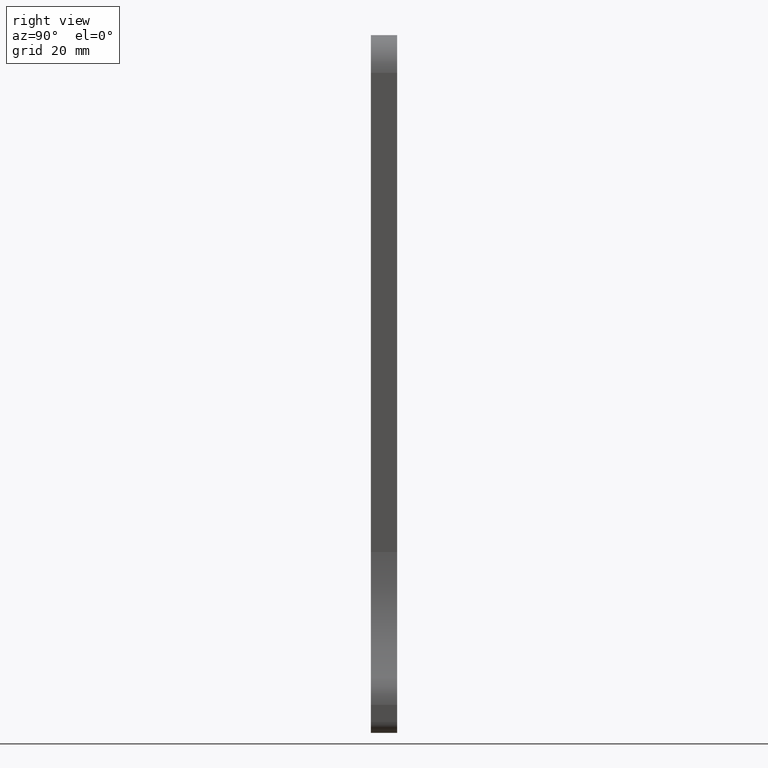
[diagram: clean part render]
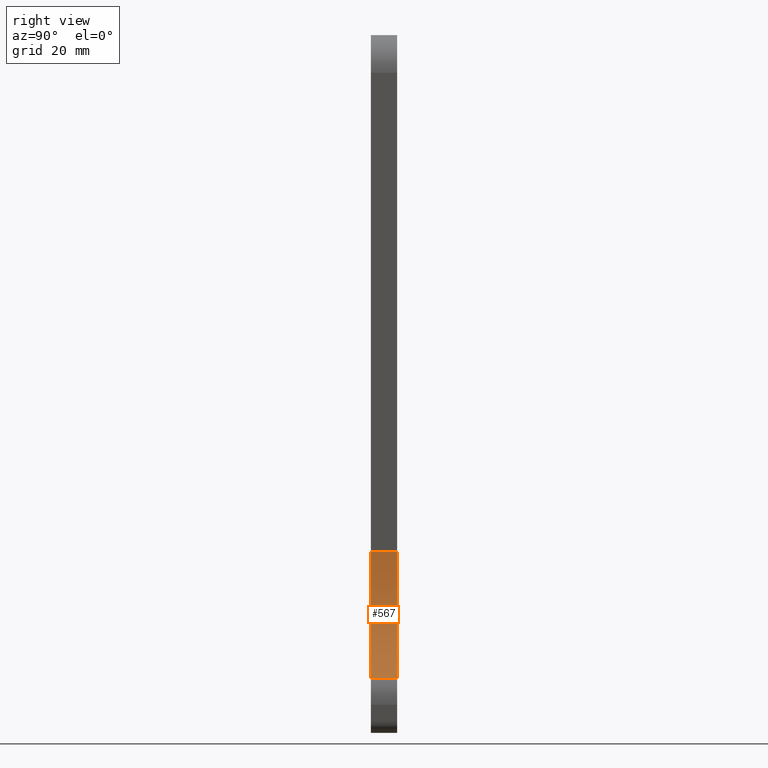
[diagram: same view with one face highlighted and labeled with its STEP entity id]
A machine part, right view. The second image highlights one B-rep face of the part: STEP entity #567.
In plain terms, the highlighted cylindrical surface (partial cylindrical patch) has radius 50 mm, axis along (-0, -1, -0).
Its self-contained STEP definition (entity closure, byte-faithful):
#39 = DIRECTION ( 'NONE',  ( 0.0000000000000000000, 1.000000000000000000, -0.0000000000000000000 ) ) ;
#46 = DIRECTION ( 'NONE',  ( -0.0000000000000000000, -1.000000000000000000, -0.0000000000000000000 ) ) ;
#130 = CARTESIAN_POINT ( 'NONE',  ( 22.91666666666669600, 3.000000000000000000, 9.590810946766229300 ) ) ;
#152 = ORIENTED_EDGE ( 'NONE', *, *, #514, .T. ) ;
#209 = VERTEX_POINT ( 'NONE', #826 ) ;
#264 = CARTESIAN_POINT ( 'NONE',  ( 12.52581510148203800, 3.000000000000000000, 38.53197360864291500 ) ) ;
#279 = DIRECTION ( 'NONE',  ( 0.0000000000000000000, 0.0000000000000000000, -1.000000000000000000 ) ) ;
#298 = VECTOR ( 'NONE', #1172, 1000.000000000000000 ) ;
#325 = FACE_OUTER_BOUND ( 'NONE', #409, .T. ) ;
#328 = ORIENTED_EDGE ( 'NONE', *, *, #934, .F. ) ;
#409 = EDGE_LOOP ( 'NONE', ( #328, #500, #861, #152 ) ) ;
#498 = CYLINDRICAL_SURFACE ( 'NONE', #1038, 50.00000000000007800 ) ;
#500 = ORIENTED_EDGE ( 'NONE', *, *, #511, .F. ) ;
#511 = EDGE_CURVE ( 'NONE', #520, #608, #854, .T. ) ;
#514 = EDGE_CURVE ( 'NONE', #1176, #209, #552, .T. ) ;
#520 = VERTEX_POINT ( 'NONE', #130 ) ;
#552 = LINE ( 'NONE', #264, #298 ) ;
#565 = DIRECTION ( 'NONE',  ( -0.0000000000000000000, -1.000000000000000000, -0.0000000000000000000 ) ) ;
#566 = AXIS2_PLACEMENT_3D ( 'NONE', #646, #39, #752 ) ;
#567 = ADVANCED_FACE ( 'NONE', ( #325 ), #498, .F. ) ;
#591 = DIRECTION ( 'NONE',  ( 0.0000000000000000000, 1.000000000000000000, -0.0000000000000000000 ) ) ;
#608 = VERTEX_POINT ( 'NONE', #1143 ) ;
#642 = CIRCLE ( 'NONE', #1221, 50.00000000000007100 ) ;
#646 = CARTESIAN_POINT ( 'NONE',  ( 62.49999999999988600, 3.000000000000000000, 40.13847406888149300 ) ) ;
#703 = CIRCLE ( 'NONE', #566, 50.00000000000007100 ) ;
#740 = CARTESIAN_POINT ( 'NONE',  ( 22.91666666666669600, 3.000000000000000000, 9.590810946766229300 ) ) ;
#752 = DIRECTION ( 'NONE',  ( 0.0000000000000000000, 0.0000000000000000000, 1.000000000000000000 ) ) ;
#826 = CARTESIAN_POINT ( 'NONE',  ( 12.52581510148203800, -3.000000000000000000, 38.53197360864291500 ) ) ;
#854 = LINE ( 'NONE', #740, #1107 ) ;
#861 = ORIENTED_EDGE ( 'NONE', *, *, #1098, .T. ) ;
#934 = EDGE_CURVE ( 'NONE', #608, #209, #642, .T. ) ;
#1038 = AXIS2_PLACEMENT_3D ( 'NONE', #1257, #565, #279 ) ;
#1098 = EDGE_CURVE ( 'NONE', #520, #1176, #703, .T. ) ;
#1107 = VECTOR ( 'NONE', #46, 1000.000000000000000 ) ;
#1143 = CARTESIAN_POINT ( 'NONE',  ( 22.91666666666669600, -3.000000000000000000, 9.590810946766229300 ) ) ;
#1172 = DIRECTION ( 'NONE',  ( -0.0000000000000000000, -1.000000000000000000, -0.0000000000000000000 ) ) ;
#1176 = VERTEX_POINT ( 'NONE', #1277 ) ;
#1210 = CARTESIAN_POINT ( 'NONE',  ( 62.49999999999988600, -3.000000000000000000, 40.13847406888149300 ) ) ;
#1221 = AXIS2_PLACEMENT_3D ( 'NONE', #1210, #591, #1319 ) ;
#1257 = CARTESIAN_POINT ( 'NONE',  ( 62.49999999999988600, 3.000000000000000000, 40.13847406888149300 ) ) ;
#1277 = CARTESIAN_POINT ( 'NONE',  ( 12.52581510148203800, 3.000000000000000000, 38.53197360864291500 ) ) ;
#1319 = DIRECTION ( 'NONE',  ( 0.0000000000000000000, 0.0000000000000000000, 1.000000000000000000 ) ) ;